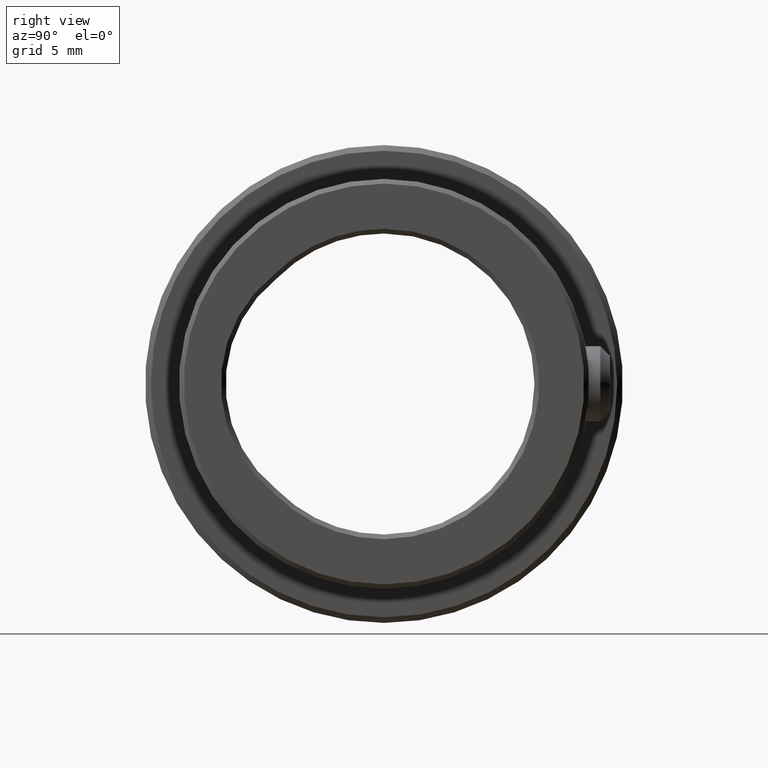
[diagram: clean part render]
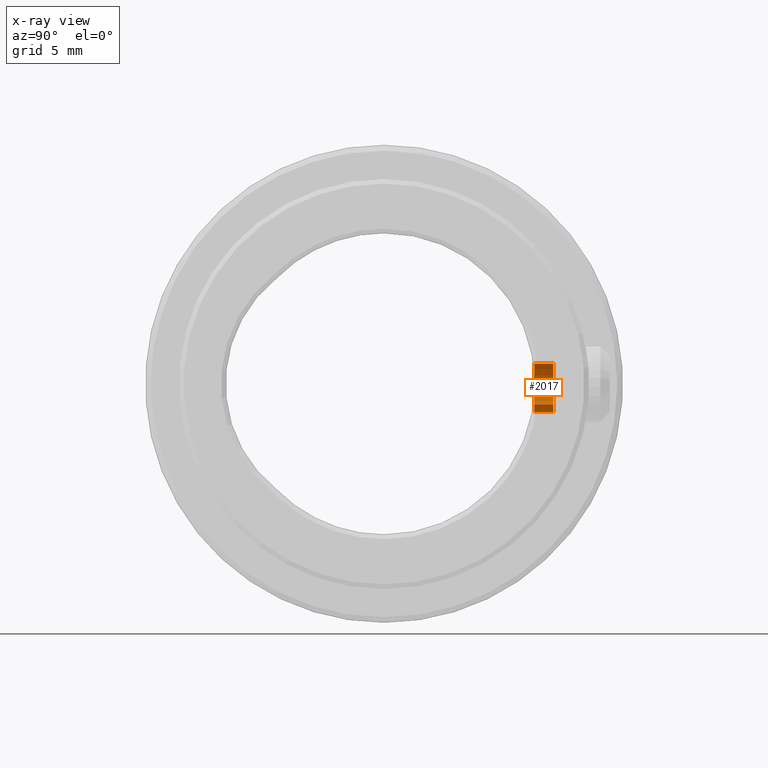
[diagram: x-ray — body ghosted, one internal face saturated and labeled with its STEP entity id]
A machine part, right view, then the same camera in x-ray: the body is ghosted and one INTERNAL B-rep face — a face not visible from any outside direction — is saturated and labeled: STEP entity #2017.
In plain terms, the highlighted cylindrical surface (edge-blend (fillet) strip) has radius 1.5 mm, axis along (-0, 1, 0).
Its self-contained STEP definition (entity closure, byte-faithful):
#126 = CARTESIAN_POINT ( 'NONE',  ( 0.000000000000000000, -1.000000000000000000, 1.500000000000000222 ) ) ;
#132 = VECTOR ( 'NONE', #2024, 1000.000000000000000 ) ;
#181 = VERTEX_POINT ( 'NONE', #1717 ) ;
#203 = VECTOR ( 'NONE', #777, 1000.000000000000000 ) ;
#344 = ORIENTED_EDGE ( 'NONE', *, *, #2681, .F. ) ;
#493 = DIRECTION ( 'NONE',  ( 0.000000000000000000, 0.000000000000000000, 1.000000000000000000 ) ) ;
#579 = VERTEX_POINT ( 'NONE', #4488 ) ;
#593 = EDGE_CURVE ( 'NONE', #3533, #4495, #1138, .T. ) ;
#673 = CIRCLE ( 'NONE', #1218, 1.500000000000000222 ) ;
#777 = DIRECTION ( 'NONE',  ( -0.000000000000000000, 1.000000000000000000, -0.000000000000000000 ) ) ;
#1035 = ORIENTED_EDGE ( 'NONE', *, *, #4493, .T. ) ;
#1097 = LINE ( 'NONE', #126, #132 ) ;
#1138 = LINE ( 'NONE', #4130, #203 ) ;
#1189 = CYLINDRICAL_SURFACE ( 'NONE', #1678, 1.500000000000000222 ) ;
#1218 = AXIS2_PLACEMENT_3D ( 'NONE', #3798, #4547, #1926 ) ;
#1678 = AXIS2_PLACEMENT_3D ( 'NONE', #1997, #2344, #493 ) ;
#1717 = CARTESIAN_POINT ( 'NONE',  ( 0.000000000000000000, 0.000000000000000000, 1.499999999999997780 ) ) ;
#1926 = DIRECTION ( 'NONE',  ( 0.000000000000000000, 0.000000000000000000, -1.000000000000000000 ) ) ;
#1959 = EDGE_CURVE ( 'NONE', #579, #181, #1097, .T. ) ;
#1997 = CARTESIAN_POINT ( 'NONE',  ( 0.000000000000000000, -1.000000000000000000, 0.000000000000000000 ) ) ;
#2017 = ADVANCED_FACE ( 'NONE', ( #2397 ), #1189, .T. ) ;
#2024 = DIRECTION ( 'NONE',  ( -0.000000000000000000, 1.000000000000000000, -0.000000000000000000 ) ) ;
#2344 = DIRECTION ( 'NONE',  ( -0.000000000000000000, 1.000000000000000000, -0.000000000000000000 ) ) ;
#2397 = FACE_OUTER_BOUND ( 'NONE', #3339, .T. ) ;
#2681 = EDGE_CURVE ( 'NONE', #579, #3533, #673, .T. ) ;
#2977 = CARTESIAN_POINT ( 'NONE',  ( 1.836970198721030181E-16, -1.000000000000000000, -1.500000000000000222 ) ) ;
#3157 = DIRECTION ( 'NONE',  ( -0.000000000000000000, -1.000000000000000000, -0.000000000000000000 ) ) ;
#3339 = EDGE_LOOP ( 'NONE', ( #3919, #344, #3848, #1035 ) ) ;
#3490 = AXIS2_PLACEMENT_3D ( 'NONE', #4701, #3157, #4658 ) ;
#3533 = VERTEX_POINT ( 'NONE', #2977 ) ;
#3798 = CARTESIAN_POINT ( 'NONE',  ( 0.000000000000000000, -1.000000000000000000, 0.000000000000000000 ) ) ;
#3848 = ORIENTED_EDGE ( 'NONE', *, *, #1959, .T. ) ;
#3919 = ORIENTED_EDGE ( 'NONE', *, *, #593, .F. ) ;
#4025 = CIRCLE ( 'NONE', #3490, 1.499999999999997780 ) ;
#4130 = CARTESIAN_POINT ( 'NONE',  ( 1.836970198721030181E-16, -1.000000000000000000, -1.500000000000000222 ) ) ;
#4349 = CARTESIAN_POINT ( 'NONE',  ( 2.143131898507866818E-16, 0.000000000000000000, -1.499999999999997780 ) ) ;
#4488 = CARTESIAN_POINT ( 'NONE',  ( 0.000000000000000000, -1.000000000000000000, 1.500000000000000222 ) ) ;
#4493 = EDGE_CURVE ( 'NONE', #181, #4495, #4025, .T. ) ;
#4495 = VERTEX_POINT ( 'NONE', #4349 ) ;
#4547 = DIRECTION ( 'NONE',  ( 0.000000000000000000, -1.000000000000000000, 0.000000000000000000 ) ) ;
#4658 = DIRECTION ( 'NONE',  ( 0.000000000000000000, 0.000000000000000000, 1.000000000000000000 ) ) ;
#4701 = CARTESIAN_POINT ( 'NONE',  ( 0.000000000000000000, 0.000000000000000000, 0.000000000000000000 ) ) ;